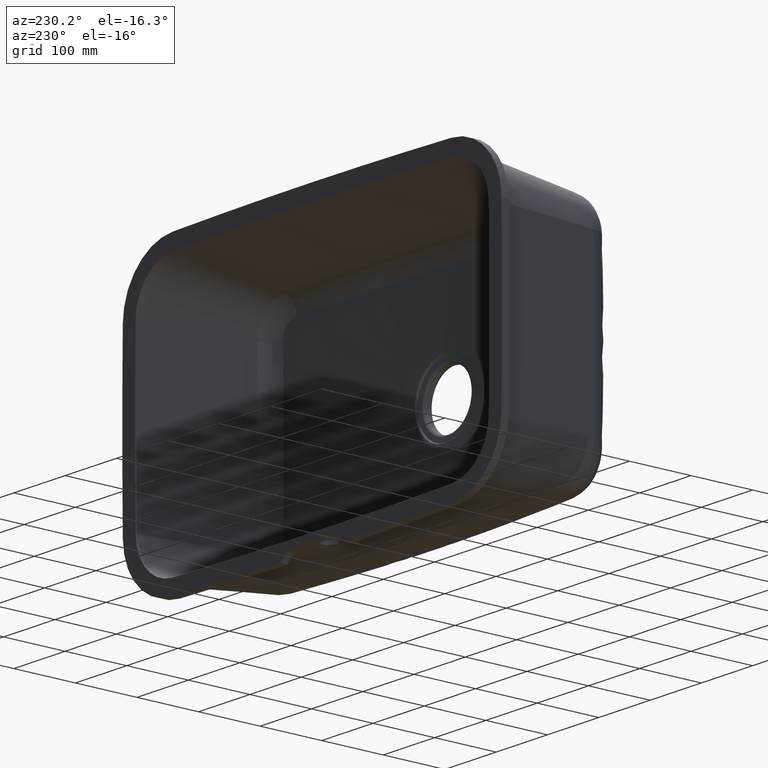
[diagram: clean part render]
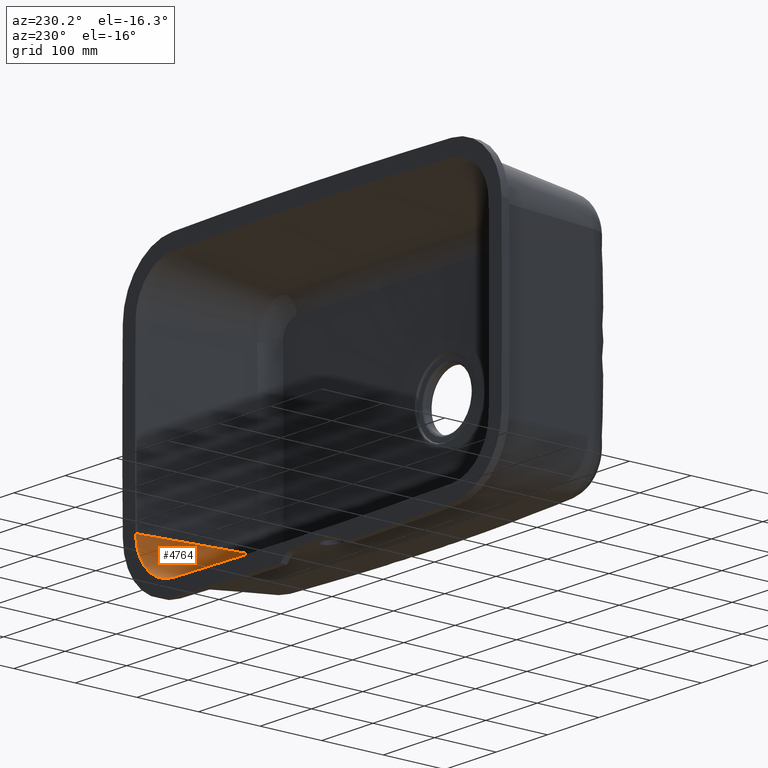
[diagram: same view with one face highlighted and labeled with its STEP entity id]
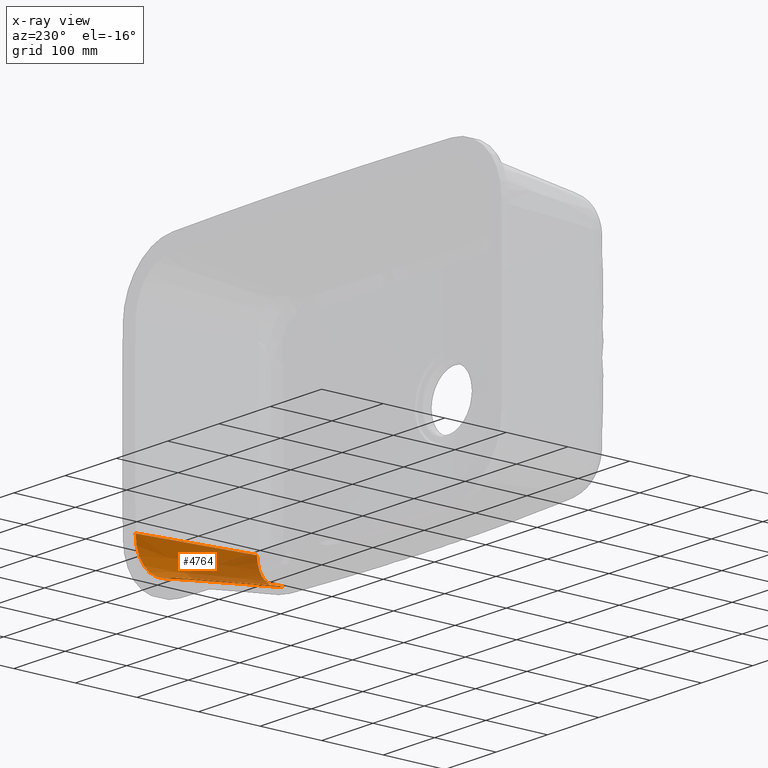
[diagram: x-ray of the same camera — body ghosted, the highlighted face saturated]
A machine part, auxiliary view. The second image highlights one B-rep face of the part: STEP entity #4764.
The next image is the same camera in x-ray: the body ghosted, the highlighted face saturated — about 34% of this face is hidden behind the body in this view.
In plain terms, the highlighted conical surface has half-angle 7 deg.
Its self-contained STEP definition (entity closure, byte-faithful):
#178 = CARTESIAN_POINT ( 'NONE',  ( 320.3728539458529700, 36.67536662866893200, -151.9452146895570200 ) ) ;
#401 = EDGE_CURVE ( 'NONE', #977, #1861, #475, .T. ) ;
#475 = B_SPLINE_CURVE_WITH_KNOTS ( 'NONE', 3,
 ( #747, #1207, #4953, #178, #1308, #1741, #2831, #5000, #1787, #1283, #6554, #764, #5523, #5568, #1835, #2349, #699, #6577, #6089, #5023, #4443, #5544, #5986, #1233 ),
 .UNSPECIFIED., .F., .F.,
 ( 4, 2, 2, 2, 2, 2, 2, 2, 2, 2, 2, 4 ),
 ( 0.0000000000000000000, 0.1249999999999999700, 0.2499999999999999400, 0.3124999999999999400, 0.3749999999999999400, 0.5000000000000000000, 0.5625000000000000000, 0.6250000000000000000, 0.7500000000000000000, 0.8125000000000000000, 0.8750000000000000000, 1.000000000000000000 ),
 .UNSPECIFIED. ) ;
#521 = DIRECTION ( 'NONE',  ( -1.000000000000000000, 0.0000000000000000000, 0.0000000000000000000 ) ) ;
#699 = CARTESIAN_POINT ( 'NONE',  ( 293.5117118112901300, 36.44977413137999600, -184.7933056531621200 ) ) ;
#747 = CARTESIAN_POINT ( 'NONE',  ( 322.1527735335843100, 36.56214804486738500, -138.5669088686612700 ) ) ;
#764 = CARTESIAN_POINT ( 'NONE',  ( 305.7900434788425100, 36.62503124491750100, -176.0498401074776800 ) ) ;
#819 = DIRECTION ( 'NONE',  ( -0.002799758081485767600, -0.9925461516413220900, 0.1218371791231518300 ) ) ;
#977 = VERTEX_POINT ( 'NONE', #4479 ) ;
#1120 = ORIENTED_EDGE ( 'NONE', *, *, #6719, .F. ) ;
#1207 = CARTESIAN_POINT ( 'NONE',  ( 322.1145732972257700, 36.60016684742322500, -141.9556631337731300 ) ) ;
#1233 = CARTESIAN_POINT ( 'NONE',  ( 270.8329622083150000, 35.99640697827381100, -190.3483371239662500 ) ) ;
#1283 = CARTESIAN_POINT ( 'NONE',  ( 311.4438525050044300, 36.68097330892034300, -169.8960203884206800 ) ) ;
#1292 = LINE ( 'NONE', #1824, #2043 ) ;
#1308 = CARTESIAN_POINT ( 'NONE',  ( 319.3761625682694200, 36.68958706700712500, -155.1427023688592300 ) ) ;
#1741 = CARTESIAN_POINT ( 'NONE',  ( 317.4385930488232900, 36.69909322821275300, -159.7656909442987400 ) ) ;
#1777 = ORIENTED_EDGE ( 'NONE', *, *, #2575, .T. ) ;
#1787 = CARTESIAN_POINT ( 'NONE',  ( 314.2499506939373600, 36.69568112318255300, -165.7005064949416900 ) ) ;
#1824 = CARTESIAN_POINT ( 'NONE',  ( 344.1218213329289000, 215.5000000000000000, -138.8448237439341400 ) ) ;
#1835 = CARTESIAN_POINT ( 'NONE',  ( 300.5980028264014500, 36.55816954959082900, -180.3632017139625500 ) ) ;
#1851 = AXIS2_PLACEMENT_3D ( 'NONE', #3024, #4119, #5667 ) ;
#1861 = VERTEX_POINT ( 'NONE', #2417 ) ;
#1895 = EDGE_LOOP ( 'NONE', ( #1120, #1777, #5718, #2534 ) ) ;
#2043 = VECTOR ( 'NONE', #6074, 1000.000000000000100 ) ;
#2119 = AXIS2_PLACEMENT_3D ( 'NONE', #5792, #4786, #521 ) ;
#2349 = CARTESIAN_POINT ( 'NONE',  ( 296.4422218832606900, 36.49726898200476900, -183.1869392647883800 ) ) ;
#2353 = CARTESIAN_POINT ( 'NONE',  ( 271.3393030312454400, 215.5000000000029600, -212.3827900106865900 ) ) ;
#2417 = CARTESIAN_POINT ( 'NONE',  ( 270.8329622083150000, 35.99640697827381100, -190.3483371239662500 ) ) ;
#2522 = CONICAL_SURFACE ( 'NONE', #2119, 74.50000000000045500, 0.1221730476396033600 ) ;
#2534 = ORIENTED_EDGE ( 'NONE', *, *, #5713, .F. ) ;
#2575 = EDGE_CURVE ( 'NONE', #3600, #1861, #3885, .T. ) ;
#2831 = CARTESIAN_POINT ( 'NONE',  ( 316.7184417751652200, 36.70027608731568600, -161.2776332957495200 ) ) ;
#3024 = CARTESIAN_POINT ( 'NONE',  ( 269.6277817311152500, 215.5000000000001400, -137.9024523715539800 ) ) ;
#3035 = VERTEX_POINT ( 'NONE', #6564 ) ;
#3244 = CARTESIAN_POINT ( 'NONE',  ( 271.3393030312462900, 215.5000000000000000, -212.3827900106860500 ) ) ;
#3600 = VERTEX_POINT ( 'NONE', #2353 ) ;
#3885 = LINE ( 'NONE', #3244, #4400 ) ;
#4119 = DIRECTION ( 'NONE',  ( -1.862790309773741300E-016, -1.000000000000000000, 1.387995095274780900E-031 ) ) ;
#4400 = VECTOR ( 'NONE', #819, 999.9999999999998900 ) ;
#4443 = CARTESIAN_POINT ( 'NONE',  ( 282.4516929506598300, 36.24557922452971300, -188.8296058175345400 ) ) ;
#4479 = CARTESIAN_POINT ( 'NONE',  ( 322.1527735335843100, 36.56214804486738500, -138.5669088686612700 ) ) ;
#4764 = ADVANCED_FACE ( 'NONE', ( #5593 ), #2522, .F. ) ;
#4786 = DIRECTION ( 'NONE',  ( 1.862790309773741300E-016, 1.000000000000000000, -1.387995095274780900E-031 ) ) ;
#4953 = CARTESIAN_POINT ( 'NONE',  ( 321.7509429928751400, 36.63036775832664200, -145.3090034917732400 ) ) ;
#5000 = CARTESIAN_POINT ( 'NONE',  ( 315.1263517333466100, 36.69858852329535600, -164.2423023820679200 ) ) ;
#5005 = CIRCLE ( 'NONE', #1851, 74.50000000000045500 ) ;
#5023 = CARTESIAN_POINT ( 'NONE',  ( 284.0704700102257300, 36.27746126724628100, -188.3988479507357600 ) ) ;
#5523 = CARTESIAN_POINT ( 'NONE',  ( 304.5496747717682000, 36.61030179412986700, -177.1869266323142000 ) ) ;
#5544 = CARTESIAN_POINT ( 'NONE',  ( 277.5502578023908300, 36.14587698984527700, -189.8866561430584700 ) ) ;
#5568 = CARTESIAN_POINT ( 'NONE',  ( 301.9429936523634400, 36.57673362950987400, -179.3524531443592900 ) ) ;
#5593 = FACE_OUTER_BOUND ( 'NONE', #1895, .T. ) ;
#5667 = DIRECTION ( 'NONE',  ( -1.000000000000000000, 0.0000000000000000000, 0.0000000000000000000 ) ) ;
#5713 = EDGE_CURVE ( 'NONE', #3035, #977, #1292, .T. ) ;
#5718 = ORIENTED_EDGE ( 'NONE', *, *, #401, .F. ) ;
#5792 = CARTESIAN_POINT ( 'NONE',  ( 269.6277817311152500, 215.5000000000001100, -137.9024523715539800 ) ) ;
#5986 = CARTESIAN_POINT ( 'NONE',  ( 274.2227262507943200, 36.07403590492738500, -190.2799761737617800 ) ) ;
#6074 = DIRECTION ( 'NONE',  ( -0.1218595932063094400, -0.9925461516413219800, 0.001541559468399691700 ) ) ;
#6089 = CARTESIAN_POINT ( 'NONE',  ( 287.2774283493284300, 36.33851393634112300, -187.3772365493335300 ) ) ;
#6554 = CARTESIAN_POINT ( 'NONE',  ( 309.3277422918827700, 36.66329672976611700, -172.4821259444430300 ) ) ;
#6564 = CARTESIAN_POINT ( 'NONE',  ( 344.1218213329282200, 215.5000000000029600, -138.8448237439338000 ) ) ;
#6577 = CARTESIAN_POINT ( 'NONE',  ( 288.8718988642818300, 36.36778688785373200, -186.7829746566555400 ) ) ;
#6719 = EDGE_CURVE ( 'NONE', #3600, #3035, #5005, .T. ) ;